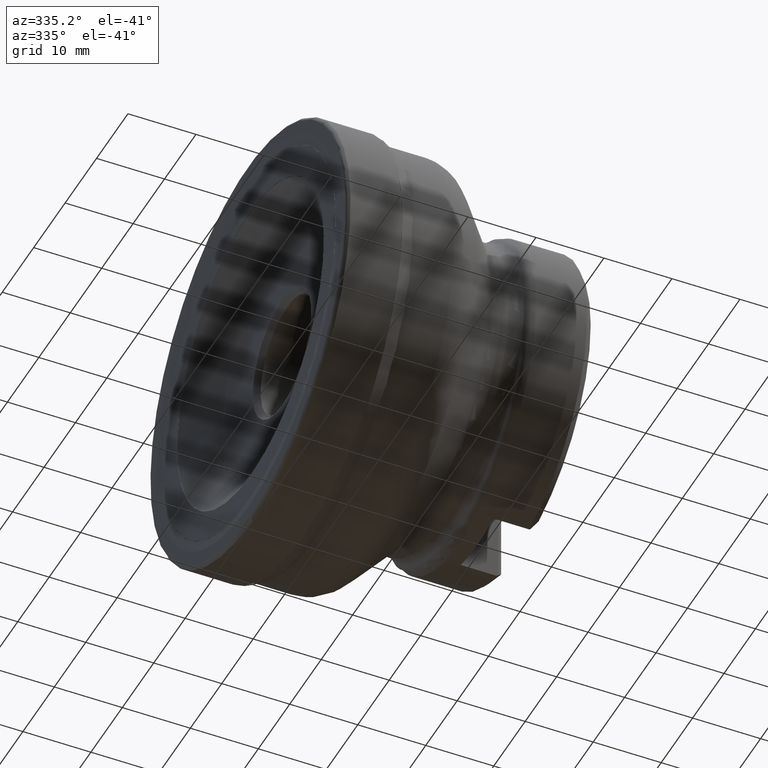
[diagram: clean part render]
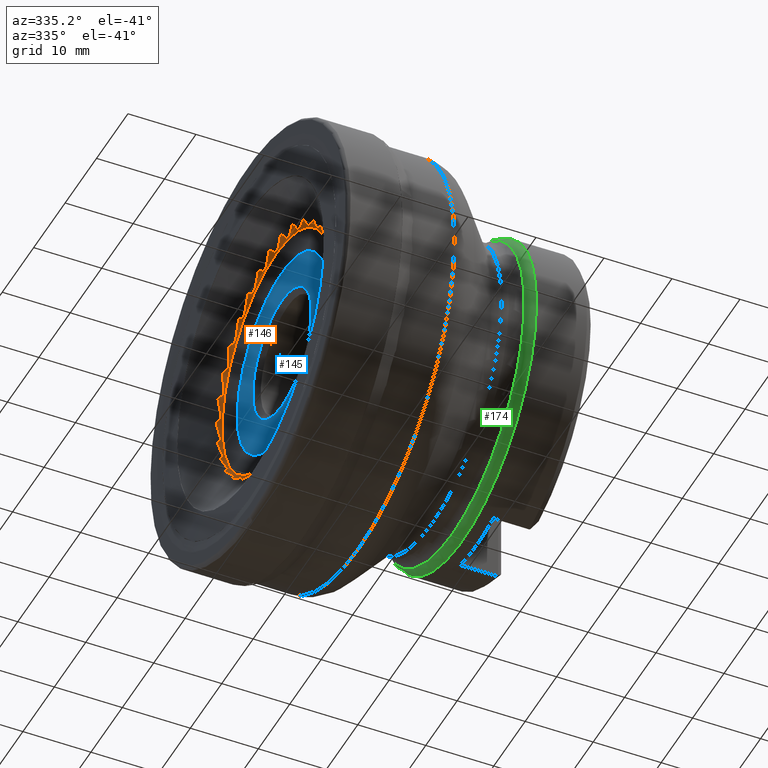
[diagram: same view with three faces highlighted in distinct colors, each labeled with its STEP entity id]
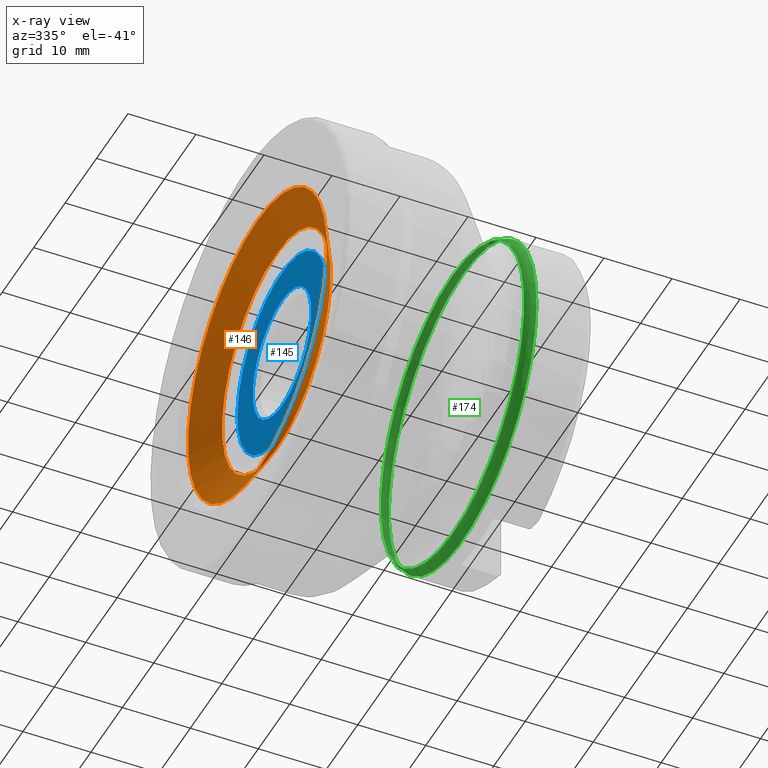
[diagram: x-ray of the same camera — body ghosted, the three highlighted faces saturated]
A machine part, auxiliary view with three faces highlighted in distinct colors.
The next image is the same camera in x-ray (body ghosted, the three faces saturated) — at least one of them is partly hidden behind the body in this view.
Their STEP definitions:

[orange] entity #146 — the highlighted conical surface has half-angle 59.664 deg.
#40=CONICAL_SURFACE('',#895,15.8851145943993,59.6637050270237);
#146=ADVANCED_FACE('',(#323,#324),#40,.F.);
#323=FACE_BOUND('',#410,.T.);
#324=FACE_BOUND('',#411,.T.);
#410=EDGE_LOOP('',(#528));
#411=EDGE_LOOP('',(#529));
#528=ORIENTED_EDGE('',*,*,#747,.T.);
#529=ORIENTED_EDGE('',*,*,#748,.T.);
#675=VERTEX_POINT('',#1372);
#676=VERTEX_POINT('',#1374);
#747=EDGE_CURVE('',#675,#675,#824,.T.);
#748=EDGE_CURVE('',#676,#676,#825,.T.);
#824=CIRCLE('',#893,17.2889786757221);
#825=CIRCLE('',#894,22.0857684153619);
#893=AXIS2_PLACEMENT_3D('',#1371,#1082,#1083);
#894=AXIS2_PLACEMENT_3D('',#1373,#1084,#1085);
#895=AXIS2_PLACEMENT_3D('',#1375,#1086,#1087);
#1082=DIRECTION('',(1.,0.,0.));
#1083=DIRECTION('',(0.,0.,1.));
#1084=DIRECTION('',(-1.,0.,0.));
#1085=DIRECTION('',(0.,0.,-1.));
#1086=DIRECTION('',(-1.,0.,0.));
#1087=DIRECTION('',(2.51453787960644E-018,0.,1.));
#1371=CARTESIAN_POINT('',(4.17845465544164,0.,0.));
#1372=CARTESIAN_POINT('',(4.17845465544164,0.,17.2889786757221));
#1373=CARTESIAN_POINT('',(1.37135934482358,0.,0.));
#1374=CARTESIAN_POINT('',(1.37135934482358,0.,-22.0857684153619));
#1375=CARTESIAN_POINT('',(5.,0.,0.));

[blue] entity #145 — the highlighted planar face has unit normal (1, 0, 0).
#47=PLANE('',#892);
#145=ADVANCED_FACE('',(#321,#322),#47,.F.);
#321=FACE_BOUND('',#408,.T.);
#322=FACE_BOUND('',#409,.T.);
#408=EDGE_LOOP('',(#526));
#409=EDGE_LOOP('',(#527));
#526=ORIENTED_EDGE('',*,*,#745,.T.);
#527=ORIENTED_EDGE('',*,*,#746,.T.);
#673=VERTEX_POINT('',#1367);
#674=VERTEX_POINT('',#1369);
#745=EDGE_CURVE('',#673,#673,#822,.T.);
#746=EDGE_CURVE('',#674,#674,#823,.T.);
#822=CIRCLE('',#890,14.2585319460245);
#823=CIRCLE('',#891,9.3);
#890=AXIS2_PLACEMENT_3D('',#1366,#1076,#1077);
#891=AXIS2_PLACEMENT_3D('',#1368,#1078,#1079);
#892=AXIS2_PLACEMENT_3D('',#1370,#1080,#1081);
#1076=DIRECTION('',(-1.,0.,0.));
#1077=DIRECTION('',(0.,0.,-1.));
#1078=DIRECTION('',(1.,0.,0.));
#1079=DIRECTION('',(0.,0.,-1.));
#1080=DIRECTION('',(1.,0.,0.));
#1081=DIRECTION('',(0.,0.,-1.));
#1366=CARTESIAN_POINT('',(5.,0.,0.));
#1367=CARTESIAN_POINT('',(5.,0.,-14.2585319460245));
#1368=CARTESIAN_POINT('',(5.,0.,0.));
#1369=CARTESIAN_POINT('',(5.,0.,-9.3));
#1370=CARTESIAN_POINT('',(5.,-8.5,0.));

[green] entity #174 — the highlighted toroidal blend (fillet) surface has major radius 21.5 mm and minor (blend) radius 2 mm.
#29=TOROIDAL_SURFACE('',#935,21.5,2.);
#174=ADVANCED_FACE('',(#353,#354),#29,.T.);
#353=FACE_BOUND('',#453,.T.);
#354=FACE_BOUND('',#454,.T.);
#453=EDGE_LOOP('',(#623));
#454=EDGE_LOOP('',(#624));
#623=ORIENTED_EDGE('',*,*,#780,.F.);
#624=ORIENTED_EDGE('',*,*,#729,.F.);
#658=VERTEX_POINT('',#1331);
#694=VERTEX_POINT('',#1475);
#729=EDGE_CURVE('',#658,#658,#810,.T.);
#780=EDGE_CURVE('',#694,#694,#837,.T.);
#810=CIRCLE('',#873,23.5);
#837=CIRCLE('',#933,22.8333333333334);
#873=AXIS2_PLACEMENT_3D('',#1330,#1038,#1039);
#933=AXIS2_PLACEMENT_3D('',#1474,#1174,#1175);
#935=AXIS2_PLACEMENT_3D('',#1477,#1178,#1179);
#1038=DIRECTION('',(1.,0.,0.));
#1039=DIRECTION('',(0.,0.,1.));
#1174=DIRECTION('',(-1.,0.,0.));
#1175=DIRECTION('',(0.,0.,1.));
#1178=DIRECTION('',(-1.,0.,0.));
#1179=DIRECTION('',(0.,0.,1.));
#1330=CARTESIAN_POINT('',(31.5628141187718,0.,0.));
#1331=CARTESIAN_POINT('',(31.5628141187718,0.,23.5));
#1474=CARTESIAN_POINT('',(30.0721021337718,0.,0.));
#1475=CARTESIAN_POINT('',(30.0721021337718,0.,22.8333333333334));
#1477=CARTESIAN_POINT('',(31.5628141187718,0.,0.));